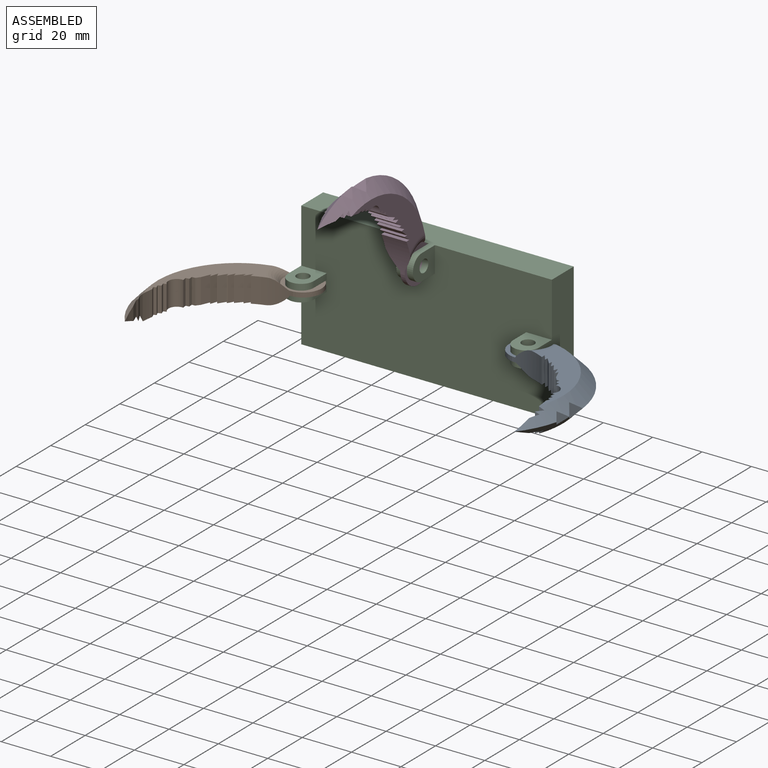
[diagram: assembled view]
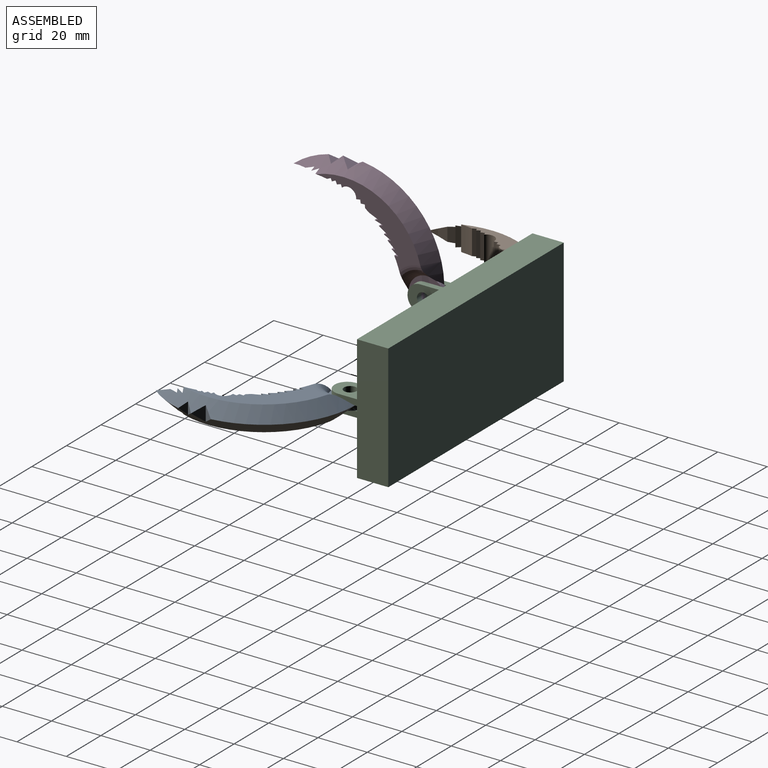
[diagram: assembled view, second angle]
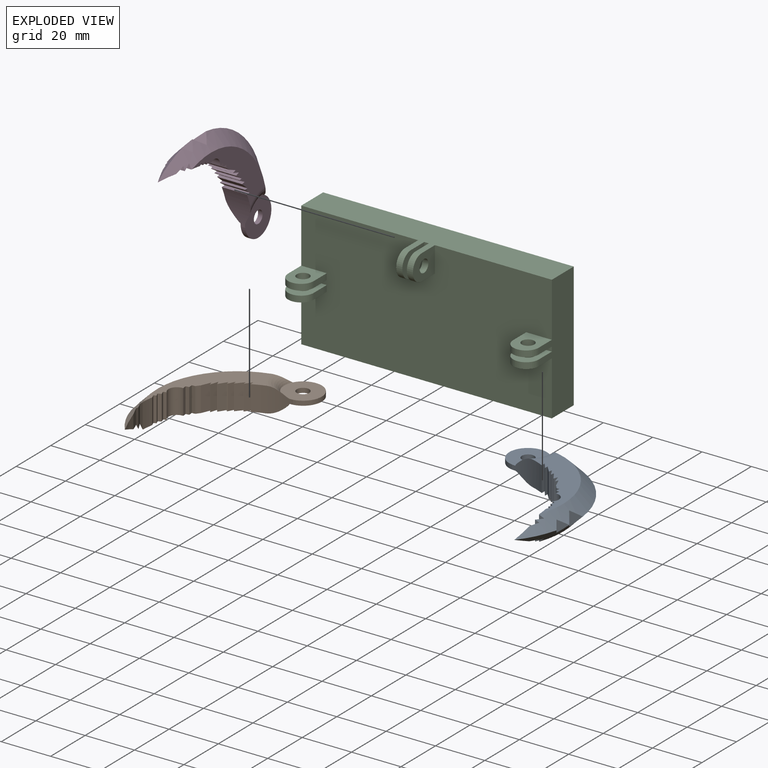
[diagram: exploded view]
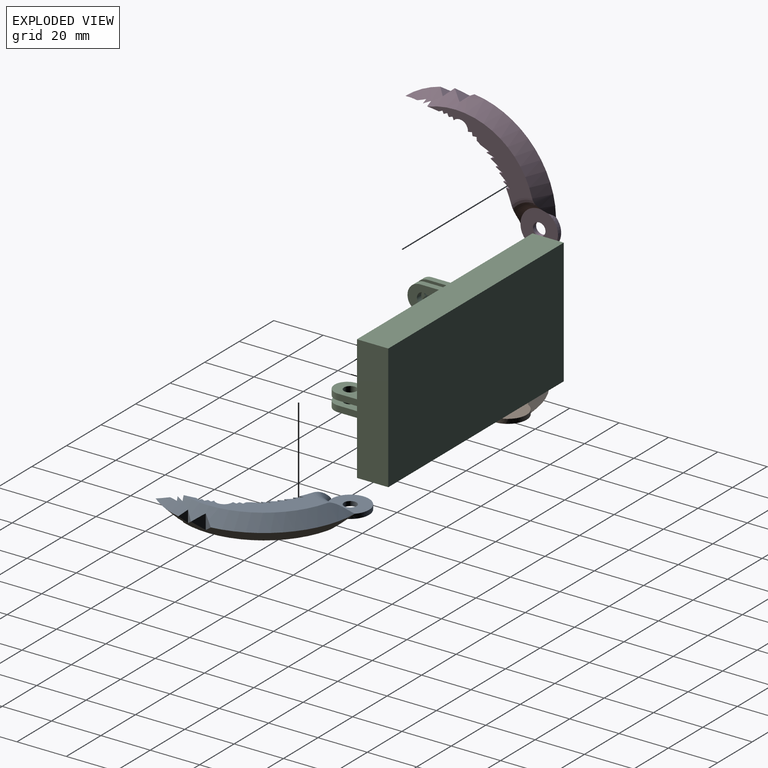
[diagram: exploded view, second angle]
ASSEMBLY  parts=4 mates=3
PART A: 50 faces, bbox 64.4x10.3x54.4 mm
  f0: cylinder r=7.62mm len=15.24mm, axis (0,1,0), area 54.9mm2, adj f2,f3,f4,f47
  f1: cylinder r=2.54mm len=5.08mm, axis (0,1,0), area 29.4mm2, adj f3,f4
  f2: cylinder r=37.75mm len=14.95mm, axis (0,1,0), area 117.4mm2, adj f0,f3,f4,f26,f44,f45,f48,f49
  f3: plane 15.24x15.24mm, normal (0,-1,0), area 162.1mm2, adj f0,f1,f2,f49
  f4: plane 15.24x15.24mm, normal (0,1,0), area 162.1mm2, adj f0,f1,f2,f48
  f5: cylinder r=3.39mm len=10.16mm, axis (0,1,0), area 83.8mm2, adj f6,f43,f44,f45
  f6: plane 10.16x1.66mm, normal (0,0,-1), area 16.8mm2, adj f5,f7,f44,f45
  f7: plane 10.16x1.39mm, normal (-1,0,0), area 14.2mm2, adj f6,f8,f44,f45
  f8: plane 10.16x1.65mm, normal (-0.09,0,-1), area 16.8mm2, adj f7,f9,f44,f45
  f9: plane 10.16x1.31mm, normal (-1,0,0.09), area 13.3mm2, adj f8,f10,f44,f45
  f10: cylinder r=37.75mm len=10.16mm, axis (0,1,0), area 19.9mm2, adj f9,f11,f44,f45
  f11: plane 10.16x3.45mm, normal (-0.53,0,-0.85), area 41.3mm2, adj f10,f12,f44,f45
  f12: plane 10.16x1.44mm, normal (-0.19,0,0.98), area 14.9mm2, adj f11,f13,f44,f45
  f13: cylinder r=37.75mm len=10.16mm, axis (0,1,0), area 0.6mm2, adj f12,f14,f44,f45
  f14: plane 10.16x3.03mm, normal (-0.45,0,-0.89), area 34.4mm2, adj f13,f15,f44,f45
  f15: plane 10.16x1.68mm, normal (-0.22,0,0.98), area 17.4mm2, adj f14,f16,f44,f45
  f16: cylinder r=37.75mm len=10.16mm, axis (0,1,0), area 2.2mm2, adj f15,f17,f44,f45
  f17: plane 10.16x2.84mm, normal (-0.67,0,-0.74), area 38.7mm2, adj f16,f18,f44,f45
  f18: plane 10.16x1.29mm, normal (-0.02,0,1), area 13.1mm2, adj f17,f19,f44,f45
  f19: cylinder r=37.75mm len=10.16mm, axis (0,1,0), area 3.1mm2, adj f18,f20,f44,f45
  f20: plane 10.16x2.42mm, normal (-0.6,0,-0.8), area 30.7mm2, adj f19,f21,f44,f45
  f21: plane 10.16x1.48mm, normal (-0.04,0,1), area 15mm2, adj f20,f22,f44,f45
  f22: plane 10.16x3.09mm, normal (-0.76,0,-0.65), area 41.3mm2, adj f21,f23,f44,f45
  f23: plane 10.16x1.41mm, normal (0.12,0,0.99), area 14.4mm2, adj f22,f24,f44,f45
  f24: cylinder r=37.75mm len=10.16mm, axis (0,1,0), area 1.2mm2, adj f23,f25,f44,f45
  f25: plane 10.16x2.35mm, normal (-0.7,0,-0.71), area 33.5mm2, adj f24,f26,f44,f45
  f26: plane 10.16x1.63mm, normal (0.09,0,1), area 16.7mm2, adj f2,f25,f44,f45
  f27: plane 6.02x4.33mm, normal (-0.44,0,0.9), area 14.8mm2, adj f28,f46,f47
  f28: plane 6.02x3.53mm, normal (0.7,0,0.72), area 15.2mm2, adj f27,f46,f47
  f29: plane 5.04x3.8mm, normal (-0.55,0,0.84), area 10.8mm2, adj f30,f46,f47
  f30: plane 4.95x2.43mm, normal (0.7,0,0.72), area 8mm2, adj f29,f46,f47
  f31: cylinder r=37.75mm len=6.93mm, axis (0,1,0), area 19.2mm2, adj f32,f46,f47
  f32: plane 6.2x4.12mm, normal (0.23,0,-0.97), area 23.8mm2, adj f31,f33,f46,f47
  f33: plane 8.05x1.27mm, normal (-0.83,0,0.56), area 10.6mm2, adj f32,f34,f46,f47
  f34: plane 8.16x3.42mm, normal (0.31,0,-0.95), area 26.8mm2, adj f33,f35,f46,f47
  f35: plane 9.95x1.53mm, normal (-0.84,0,0.54), area 15.4mm2, adj f34,f36,f46,f47
  f36: cylinder r=37.75mm len=10.16mm, axis (0,1,0), area 49.1mm2, adj f35,f37,f44,f45,f46,f47
  f37: plane 10.16x1.6mm, normal (0.26,0,-0.97), area 16.8mm2, adj f36,f38,f44,f45
  f38: plane 10.16x1.13mm, normal (-0.97,0,-0.26), area 11.9mm2, adj f37,f39,f44,f45
  f39: plane 10.16x1.54mm, normal (0.29,0,-0.96), area 16.3mm2, adj f38,f40,f44,f45
  f40: plane 10.16x1.36mm, normal (-0.96,0,-0.29), area 14.5mm2, adj f39,f41,f44,f45
  f41: plane 10.16x1.63mm, normal (0.17,0,-0.98), area 16.8mm2, adj f40,f42,f44,f45
  f42: plane 10.16x1.24mm, normal (-0.98,0,-0.17), area 12.8mm2, adj f41,f43,f44,f45
  f43: plane 10.16x0.02mm, normal (-0.48,0,-0.88), area 0.2mm2, adj f5,f42,f44,f45
  f44: plane 38.38x31.98mm, normal (0,-1,0), area 307.7mm2, adj f2,f5,f6,f7,f8,f9,f10,f11
  f45: plane 38.34x31.58mm, normal (0,1,0), area 304.3mm2, adj f2,f5,f6,f7,f8,f9,f10,f11
  f46: cone r=37.48mm half-angle=45deg, axis (0,-1,0), area 464.9mm2, adj f27,f28,f29,f30,f31,f32,f33,f34
  f47: cone r=32.4mm half-angle=45deg, axis (0,1,0), area 467.1mm2, adj f0,f27,f28,f29,f30,f31,f32,f33
  f48: torus R=12.7mm, axis (0,-1,0), area 99.4mm2, adj f2,f4,f45,f46
  f49: torus R=12.35mm, axis (0,-1,0), area 69.8mm2, adj f2,f3,f44,f47
PART B: same geometry as A
PART C: 48 faces, bbox 101.6x25.4x50.8 mm
  f0: plane 101.6x50.8mm, normal (0,-1,0), area 5006.7mm2, adj f1,f2,f3,f4,f6,f7,f8,f10
  f1: plane 50.8x20.32mm, normal (1,0,0), area 683mm2, adj f0,f2,f4,f5,f14,f16,f18,f19
  f2: plane 101.6x20.32mm, normal (0,0,1), area 1328.1mm2, adj f0,f1,f3,f5,f23,f24,f27,f28
  f3: plane 50.8x20.32mm, normal (-1,0,0), area 683mm2, adj f0,f2,f4,f5,f6,f7,f10,f12
  f4: plane 101.6x12.7mm, normal (0,0,-1), area 1290.3mm2, adj f0,f1,f3,f5
  f5: plane 101.6x50.8mm, normal (0,1,0), area 5161.3mm2, adj f1,f2,f3,f4
  f6: plane 12.7x10.38mm, normal (0,0,1), area 100.4mm2, adj f0,f3,f8,f9,f35,f46,f47
  f7: plane 12.7x10.38mm, normal (0,0,-1), area 100.4mm2, adj f0,f3,f8,f9,f35,f46,f47
  f8: plane 7.62x2.48mm, normal (1,0,0), area 18.9mm2, adj f0,f6,f7,f47
  f9: plane 2.48x0.22mm, normal (0,-1,0), area 0.5mm2, adj f6,f7,f46,f47
  f10: plane 12.7x10.38mm, normal (0,0,-1), area 100.4mm2, adj f0,f3,f11,f13,f34,f38,f39
  f11: plane 7.62x2.48mm, normal (1,0,0), area 18.9mm2, adj f0,f10,f12,f38
  f12: plane 12.7x10.38mm, normal (0,0,1), area 100.4mm2, adj f0,f3,f11,f13,f34,f38,f39
  f13: plane 2.48x0.22mm, normal (0,-1,0), area 0.5mm2, adj f10,f12,f38,f39
  f14: plane 12.7x10.38mm, normal (0,0,1), area 100.4mm2, adj f0,f1,f15,f17,f33,f44,f45
  f15: plane 7.62x2.48mm, normal (-1,0,0), area 18.9mm2, adj f0,f14,f16,f44
  f16: plane 12.7x10.38mm, normal (0,0,-1), area 100.4mm2, adj f0,f1,f15,f17,f33,f44,f45
  f17: plane 2.48x0.22mm, normal (0,-1,0), area 0.5mm2, adj f14,f16,f44,f45
  f18: plane 12.7x10.38mm, normal (0,0,-1), area 100.4mm2, adj f0,f1,f20,f21,f32,f36,f37
  f19: plane 12.7x10.38mm, normal (0,0,1), area 100.4mm2, adj f0,f1,f20,f21,f32,f36,f37
  f20: plane 7.62x2.48mm, normal (-1,0,0), area 18.9mm2, adj f0,f18,f19,f37
  f21: plane 2.48x0.22mm, normal (0,-1,0), area 0.5mm2, adj f18,f19,f36,f37
  f22: plane 7.62x2.48mm, normal (0,0,-1), area 18.9mm2, adj f0,f23,f24,f43
  f23: plane 12.7x10.39mm, normal (1,0,0), area 100.6mm2, adj f0,f2,f22,f25,f31,f42,f43
  f24: plane 12.7x10.39mm, normal (-1,0,0), area 100.6mm2, adj f0,f2,f22,f25,f31,f42,f43
  f25: plane 2.48x0.23mm, normal (0,-1,0), area 0.6mm2, adj f23,f24,f42,f43
  f26: plane 7.62x2.48mm, normal (0,0,-1), area 18.9mm2, adj f0,f27,f28,f41
  f27: plane 12.7x10.39mm, normal (1,0,0), area 100.6mm2, adj f0,f2,f26,f29,f30,f40,f41
  f28: plane 12.7x10.39mm, normal (-1,0,0), area 100.6mm2, adj f0,f2,f26,f29,f30,f40,f41
  f29: plane 2.48x0.23mm, normal (0,-1,0), area 0.6mm2, adj f27,f28,f40,f41
  f30: cylinder r=2.54mm len=5.08mm, axis (-1,0,0), area 39.6mm2, adj f27,f28
  f31: cylinder r=2.54mm len=5.08mm, axis (-1,0,0), area 39.6mm2, adj f23,f24
  f32: cylinder r=2.54mm len=5.08mm, axis (0,0,1), area 39.6mm2, adj f18,f19
  f33: cylinder r=2.54mm len=5.08mm, axis (0,0,1), area 39.6mm2, adj f14,f16
  f34: cylinder r=2.54mm len=5.08mm, axis (0,0,1), area 39.6mm2, adj f10,f12
  f35: cylinder r=2.54mm len=5.08mm, axis (0,0,1), area 39.6mm2, adj f6,f7
  f36: cylinder r=5.08mm len=5.08mm, axis (0,0,-1), area 19.8mm2, adj f1,f18,f19,f21
  f37: cylinder r=5.08mm len=5.08mm, axis (0,0,1), area 19.8mm2, adj f18,f19,f20,f21
  f38: cylinder r=5.08mm len=5.08mm, axis (0,0,-1), area 19.8mm2, adj f10,f11,f12,f13
  f39: cylinder r=5.08mm len=5.08mm, axis (0,0,1), area 19.8mm2, adj f3,f10,f12,f13
  f40: cylinder r=5.08mm len=5.08mm, axis (1,0,0), area 19.8mm2, adj f2,f27,f28,f29
  f41: cylinder r=5.08mm len=5.08mm, axis (-1,0,0), area 19.8mm2, adj f26,f27,f28,f29
  f42: cylinder r=5.08mm len=5.08mm, axis (1,0,0), area 19.8mm2, adj f2,f23,f24,f25
  f43: cylinder r=5.08mm len=5.08mm, axis (-1,0,0), area 19.8mm2, adj f22,f23,f24,f25
  f44: cylinder r=5.08mm len=5.08mm, axis (0,0,1), area 19.8mm2, adj f14,f15,f16,f17
  f45: cylinder r=5.08mm len=5.08mm, axis (0,0,-1), area 19.8mm2, adj f1,f14,f16,f17
  f46: cylinder r=5.08mm len=5.08mm, axis (0,0,1), area 19.8mm2, adj f3,f6,f7,f9
  f47: cylinder r=5.08mm len=5.08mm, axis (0,0,-1), area 19.8mm2, adj f6,f7,f8,f9
PART D: same geometry as A
PLACE A rot(axis=(0.64,0.54,0.54),115deg) t=(169.24,137.56,94.96)mm
PLACE B rot(axis=(-0.52,-0.61,0.61),125.3deg) t=(78.01,137.56,93.12)mm
PLACE C t=(123.62,156.61,94.04)mm fixed
PLACE D rot(axis=(0.08,-0.08,0.99),90.3deg) t=(122.7,137.56,114.24)mm
MATE revolute B.f1 <-> C.f34  axis (0,0,-1) through (78.01,137.56,93.12)mm
MATE revolute C.f32 <-> A.f1  axis (0,0,-1) through (169.24,137.56,94.96)mm
MATE revolute D.f1 <-> C.f30  axis (1,0,0) through (124.55,137.56,114.24)mm
